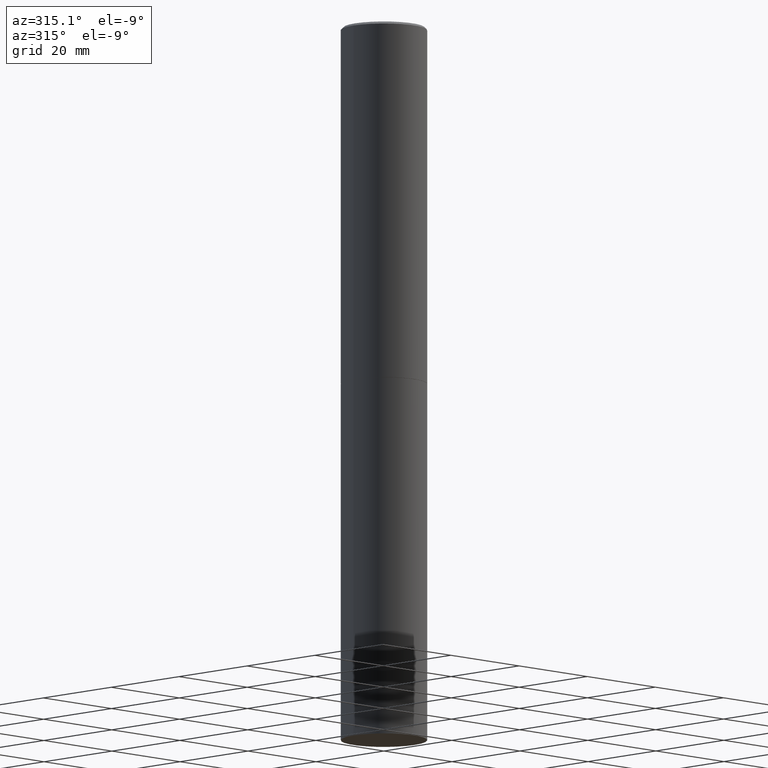
[diagram: clean part render]
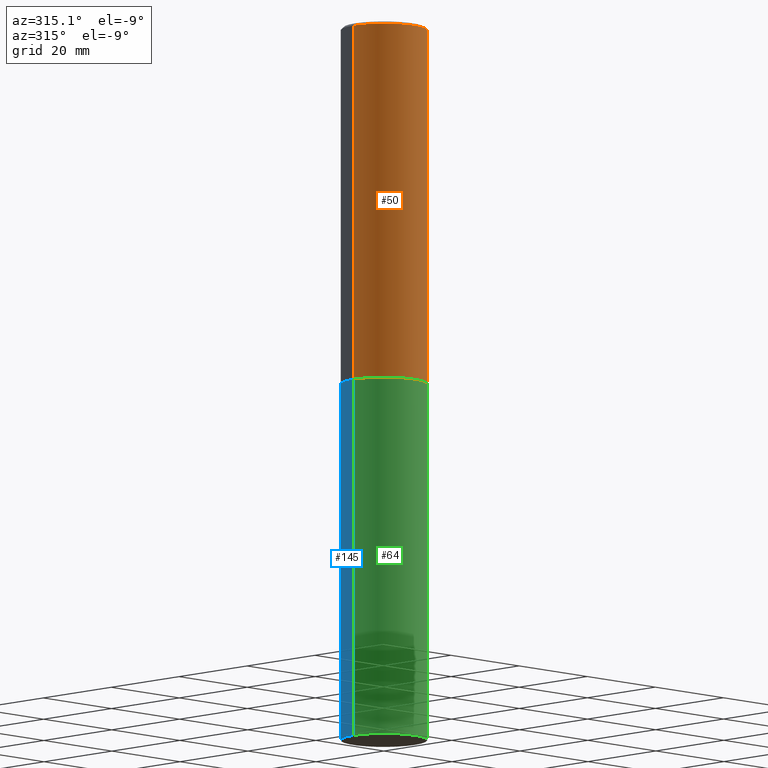
[diagram: same view with three faces highlighted in distinct colors, each labeled with its STEP entity id]
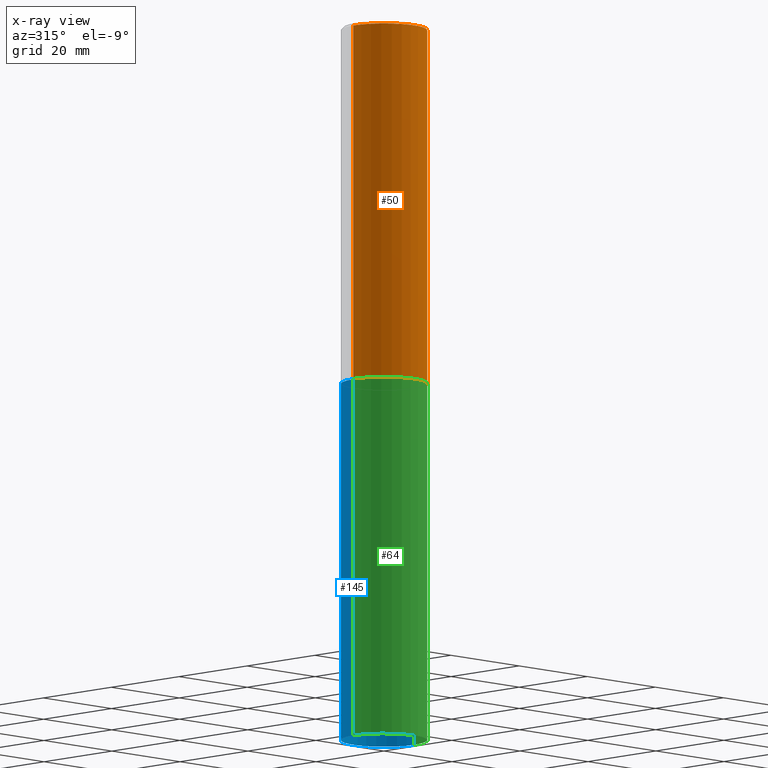
[diagram: x-ray of the same camera — body ghosted, the three highlighted faces saturated]
A machine part, auxiliary view with three faces highlighted in distinct colors.
The next image is the same camera in x-ray (body ghosted, the three faces saturated) — at least one of them is partly hidden behind the body in this view.
Their STEP definitions:

[orange] entity #50 — the highlighted cylindrical surface (partial cylindrical patch) has radius 9.0005 mm, axis along (-0, 0, 1).
#1 = EDGE_LOOP ( 'NONE', ( #252, #2, #153, #246 ) ) ;
#2 = ORIENTED_EDGE ( 'NONE', *, *, #341, .T. ) ;
#3 = CARTESIAN_POINT ( 'NONE',  ( -0.3543499999999998873, 2.517808184165914208E-15, -1.743024649231825225E-29 ) ) ;
#6 = DIRECTION ( 'NONE',  ( 1.000000000000000000, -6.982962677686266711E-15, 0.000000000000000000 ) ) ;
#9 = CARTESIAN_POINT ( 'NONE',  ( 7.218290275216666916E-29, -1.030580546786331359E-14, -2.951700000000000212 ) ) ;
#13 = EDGE_CURVE ( 'NONE', #225, #342, #227, .T. ) ;
#44 = CIRCLE ( 'NONE', #249, 0.3543499999999996652 ) ;
#50 = ADVANCED_FACE ( 'NONE', ( #286 ), #192, .T. ) ;
#55 = DIRECTION ( 'NONE',  ( 1.000000000000000000, -6.982962677686266711E-15, 4.876176775795935232E-29 ) ) ;
#62 = AXIS2_PLACEMENT_3D ( 'NONE', #138, #163, #55 ) ;
#73 = CARTESIAN_POINT ( 'NONE',  ( 0.3543499999999999983, -1.278021829270144189E-14, -2.951700000000000212 ) ) ;
#104 = DIRECTION ( 'NONE',  ( -2.445468806185136877E-29, 3.491481338843145188E-15, 1.000000000000000000 ) ) ;
#106 = DIRECTION ( 'NONE',  ( -2.445468806185136877E-29, 3.491481338843145188E-15, 1.000000000000000000 ) ) ;
#117 = CIRCLE ( 'NONE', #326, 0.3543499999999999983 ) ;
#119 = VECTOR ( 'NONE', #106, 39.37007874015748143 ) ;
#138 = CARTESIAN_POINT ( 'NONE',  ( 0.000000000000000000, 0.000000000000000000, 0.000000000000000000 ) ) ;
#139 = CARTESIAN_POINT ( 'NONE',  ( -0.3543499999999996652, 2.404583198061263029E-15, -0.02000000000000008021 ) ) ;
#140 = VECTOR ( 'NONE', #104, 39.37007874015748143 ) ;
#153 = ORIENTED_EDGE ( 'NONE', *, *, #13, .T. ) ;
#163 = DIRECTION ( 'NONE',  ( -2.445468806185136597E-29, 3.491481338843145583E-15, 1.000000000000000000 ) ) ;
#192 = CYLINDRICAL_SURFACE ( 'NONE', #62, 0.3543499999999998873 ) ;
#197 = DIRECTION ( 'NONE',  ( -2.445468806185136597E-29, 3.491481338843145583E-15, 1.000000000000000000 ) ) ;
#225 = VERTEX_POINT ( 'NONE', #73 ) ;
#226 = CARTESIAN_POINT ( 'NONE',  ( 0.3543499999999996652, -2.500847092287203323E-15, -0.02000000000000008021 ) ) ;
#227 = LINE ( 'NONE', #251, #119 ) ;
#228 = DIRECTION ( 'NONE',  ( 1.000000000000000000, -6.982962677686265922E-15, 0.000000000000000000 ) ) ;
#246 = ORIENTED_EDGE ( 'NONE', *, *, #284, .F. ) ;
#249 = AXIS2_PLACEMENT_3D ( 'NONE', #308, #364, #6 ) ;
#251 = CARTESIAN_POINT ( 'NONE',  ( 0.3543499999999998873, -2.474412824838127905E-15, 1.727873240503289188E-29 ) ) ;
#252 = ORIENTED_EDGE ( 'NONE', *, *, #267, .F. ) ;
#267 = EDGE_CURVE ( 'NONE', #279, #357, #314, .T. ) ;
#279 = VERTEX_POINT ( 'NONE', #310 ) ;
#284 = EDGE_CURVE ( 'NONE', #357, #342, #44, .T. ) ;
#286 = FACE_OUTER_BOUND ( 'NONE', #1, .T. ) ;
#308 = CARTESIAN_POINT ( 'NONE',  ( 4.890937612370293302E-31, -6.982962677686318726E-17, -0.02000000000000008021 ) ) ;
#310 = CARTESIAN_POINT ( 'NONE',  ( -0.3543499999999999983, -2.670009363154171868E-15, -2.951700000000000212 ) ) ;
#314 = LINE ( 'NONE', #3, #140 ) ;
#326 = AXIS2_PLACEMENT_3D ( 'NONE', #9, #197, #228 ) ;
#341 = EDGE_CURVE ( 'NONE', #279, #225, #117, .T. ) ;
#342 = VERTEX_POINT ( 'NONE', #226 ) ;
#357 = VERTEX_POINT ( 'NONE', #139 ) ;
#364 = DIRECTION ( 'NONE',  ( -2.445468806185136597E-29, 3.491481338843145583E-15, 1.000000000000000000 ) ) ;

[blue] entity #145 — the highlighted cylindrical surface (partial cylindrical patch) has radius 9.0005 mm, axis along (-0, 0, 1).
#11 = ORIENTED_EDGE ( 'NONE', *, *, #164, .T. ) ;
#18 = CARTESIAN_POINT ( 'NONE',  ( 0.000000000000000000, 0.000000000000000000, 0.000000000000000000 ) ) ;
#21 = ORIENTED_EDGE ( 'NONE', *, *, #96, .T. ) ;
#25 = DIRECTION ( 'NONE',  ( 1.000000000000000000, -6.982962677686271444E-15, 0.000000000000000000 ) ) ;
#31 = CARTESIAN_POINT ( 'NONE',  ( -0.3543499999999999983, -1.294631181370425968E-14, -2.952700000000000102 ) ) ;
#42 = CARTESIAN_POINT ( 'NONE',  ( 0.3543499999999999983, -2.309335587137632500E-14, -5.905499999999999972 ) ) ;
#51 = ORIENTED_EDGE ( 'NONE', *, *, #322, .F. ) ;
#65 = DIRECTION ( 'NONE',  ( -2.445468806185136597E-29, 3.491481338843145583E-15, 1.000000000000000000 ) ) ;
#69 = DIRECTION ( 'NONE',  ( -2.445468806185136597E-29, 3.491481338843145583E-15, 1.000000000000000000 ) ) ;
#71 = EDGE_LOOP ( 'NONE', ( #11, #21, #188, #51 ) ) ;
#77 = EDGE_CURVE ( 'NONE', #105, #303, #256, .T. ) ;
#78 = AXIS2_PLACEMENT_3D ( 'NONE', #18, #273, #180 ) ;
#91 = AXIS2_PLACEMENT_3D ( 'NONE', #120, #69, #25 ) ;
#95 = VECTOR ( 'NONE', #137, 39.37007874015748143 ) ;
#96 = EDGE_CURVE ( 'NONE', #213, #303, #356, .T. ) ;
#105 = VERTEX_POINT ( 'NONE', #325 ) ;
#120 = CARTESIAN_POINT ( 'NONE',  ( 1.444171603492632270E-28, -2.061894304653819197E-14, -5.905499999999999972 ) ) ;
#123 = AXIS2_PLACEMENT_3D ( 'NONE', #235, #65, #351 ) ;
#131 = VERTEX_POINT ( 'NONE', #42 ) ;
#137 = DIRECTION ( 'NONE',  ( -2.445468806185136877E-29, 3.491481338843145188E-15, 1.000000000000000000 ) ) ;
#145 = ADVANCED_FACE ( 'NONE', ( #146 ), #268, .T. ) ;
#146 = FACE_OUTER_BOUND ( 'NONE', #71, .T. ) ;
#156 = LINE ( 'NONE', #281, #95 ) ;
#164 = EDGE_CURVE ( 'NONE', #131, #213, #243, .T. ) ;
#180 = DIRECTION ( 'NONE',  ( 1.000000000000000000, -6.982962677686266711E-15, 4.876176775795935793E-29 ) ) ;
#188 = ORIENTED_EDGE ( 'NONE', *, *, #77, .F. ) ;
#210 = DIRECTION ( 'NONE',  ( -2.445468806185136877E-29, 3.491481338843145188E-15, 1.000000000000000000 ) ) ;
#213 = VERTEX_POINT ( 'NONE', #214 ) ;
#214 = CARTESIAN_POINT ( 'NONE',  ( -0.3543499999999999983, -1.294631181370425968E-14, -5.905499999999999972 ) ) ;
#216 = VECTOR ( 'NONE', #210, 39.37007874015748143 ) ;
#235 = CARTESIAN_POINT ( 'NONE',  ( 7.220735744022852519E-29, -1.030929694920215502E-14, -2.952700000000000102 ) ) ;
#243 = CIRCLE ( 'NONE', #91, 0.3543499999999999983 ) ;
#256 = CIRCLE ( 'NONE', #123, 0.3543499999999999983 ) ;
#268 = CYLINDRICAL_SURFACE ( 'NONE', #78, 0.3543499999999999983 ) ;
#273 = DIRECTION ( 'NONE',  ( -2.445468806185136597E-29, 3.491481338843145583E-15, 1.000000000000000000 ) ) ;
#281 = CARTESIAN_POINT ( 'NONE',  ( 0.3543499999999999983, -2.474412824838128694E-15, 1.727873240503289749E-29 ) ) ;
#296 = CARTESIAN_POINT ( 'NONE',  ( -0.3543499999999999983, 2.517808184165914997E-15, -1.743024649231826066E-29 ) ) ;
#303 = VERTEX_POINT ( 'NONE', #31 ) ;
#322 = EDGE_CURVE ( 'NONE', #131, #105, #156, .T. ) ;
#325 = CARTESIAN_POINT ( 'NONE',  ( 0.3543499999999999983, -1.278370977404028332E-14, -2.952700000000000102 ) ) ;
#351 = DIRECTION ( 'NONE',  ( 1.000000000000000000, -6.982962677686265922E-15, 0.000000000000000000 ) ) ;
#356 = LINE ( 'NONE', #296, #216 ) ;

[green] entity #64 — the highlighted cylindrical surface (partial cylindrical patch) has radius 9.0005 mm, axis along (-0, 0, 1).
#8 = AXIS2_PLACEMENT_3D ( 'NONE', #53, #347, #201 ) ;
#30 = CYLINDRICAL_SURFACE ( 'NONE', #8, 0.3543499999999999983 ) ;
#31 = CARTESIAN_POINT ( 'NONE',  ( -0.3543499999999999983, -1.294631181370425968E-14, -2.952700000000000102 ) ) ;
#42 = CARTESIAN_POINT ( 'NONE',  ( 0.3543499999999999983, -2.309335587137632500E-14, -5.905499999999999972 ) ) ;
#46 = ORIENTED_EDGE ( 'NONE', *, *, #322, .T. ) ;
#48 = DIRECTION ( 'NONE',  ( 1.000000000000000000, -6.982962677686271444E-15, 0.000000000000000000 ) ) ;
#53 = CARTESIAN_POINT ( 'NONE',  ( 0.000000000000000000, 0.000000000000000000, 0.000000000000000000 ) ) ;
#64 = ADVANCED_FACE ( 'NONE', ( #114 ), #30, .T. ) ;
#95 = VECTOR ( 'NONE', #137, 39.37007874015748143 ) ;
#96 = EDGE_CURVE ( 'NONE', #213, #303, #356, .T. ) ;
#105 = VERTEX_POINT ( 'NONE', #325 ) ;
#114 = FACE_OUTER_BOUND ( 'NONE', #187, .T. ) ;
#131 = VERTEX_POINT ( 'NONE', #42 ) ;
#137 = DIRECTION ( 'NONE',  ( -2.445468806185136877E-29, 3.491481338843145188E-15, 1.000000000000000000 ) ) ;
#156 = LINE ( 'NONE', #281, #95 ) ;
#177 = DIRECTION ( 'NONE',  ( -2.445468806185136597E-29, 3.491481338843145583E-15, 1.000000000000000000 ) ) ;
#181 = EDGE_CURVE ( 'NONE', #213, #131, #305, .T. ) ;
#185 = ORIENTED_EDGE ( 'NONE', *, *, #186, .F. ) ;
#186 = EDGE_CURVE ( 'NONE', #303, #105, #264, .T. ) ;
#187 = EDGE_LOOP ( 'NONE', ( #297, #275, #46, #185 ) ) ;
#201 = DIRECTION ( 'NONE',  ( 1.000000000000000000, -6.982962677686266711E-15, 4.876176775795935793E-29 ) ) ;
#208 = AXIS2_PLACEMENT_3D ( 'NONE', #244, #177, #329 ) ;
#210 = DIRECTION ( 'NONE',  ( -2.445468806185136877E-29, 3.491481338843145188E-15, 1.000000000000000000 ) ) ;
#212 = DIRECTION ( 'NONE',  ( -2.445468806185136597E-29, 3.491481338843145583E-15, 1.000000000000000000 ) ) ;
#213 = VERTEX_POINT ( 'NONE', #214 ) ;
#214 = CARTESIAN_POINT ( 'NONE',  ( -0.3543499999999999983, -1.294631181370425968E-14, -5.905499999999999972 ) ) ;
#216 = VECTOR ( 'NONE', #210, 39.37007874015748143 ) ;
#244 = CARTESIAN_POINT ( 'NONE',  ( 7.220735744022852519E-29, -1.030929694920215502E-14, -2.952700000000000102 ) ) ;
#264 = CIRCLE ( 'NONE', #208, 0.3543499999999999983 ) ;
#275 = ORIENTED_EDGE ( 'NONE', *, *, #181, .T. ) ;
#281 = CARTESIAN_POINT ( 'NONE',  ( 0.3543499999999999983, -2.474412824838128694E-15, 1.727873240503289749E-29 ) ) ;
#296 = CARTESIAN_POINT ( 'NONE',  ( -0.3543499999999999983, 2.517808184165914997E-15, -1.743024649231826066E-29 ) ) ;
#297 = ORIENTED_EDGE ( 'NONE', *, *, #96, .F. ) ;
#303 = VERTEX_POINT ( 'NONE', #31 ) ;
#305 = CIRCLE ( 'NONE', #318, 0.3543499999999999983 ) ;
#318 = AXIS2_PLACEMENT_3D ( 'NONE', #327, #212, #48 ) ;
#322 = EDGE_CURVE ( 'NONE', #131, #105, #156, .T. ) ;
#325 = CARTESIAN_POINT ( 'NONE',  ( 0.3543499999999999983, -1.278370977404028332E-14, -2.952700000000000102 ) ) ;
#327 = CARTESIAN_POINT ( 'NONE',  ( 1.444171603492632270E-28, -2.061894304653819197E-14, -5.905499999999999972 ) ) ;
#329 = DIRECTION ( 'NONE',  ( 1.000000000000000000, -6.982962677686265922E-15, 0.000000000000000000 ) ) ;
#347 = DIRECTION ( 'NONE',  ( -2.445468806185136597E-29, 3.491481338843145583E-15, 1.000000000000000000 ) ) ;
#356 = LINE ( 'NONE', #296, #216 ) ;